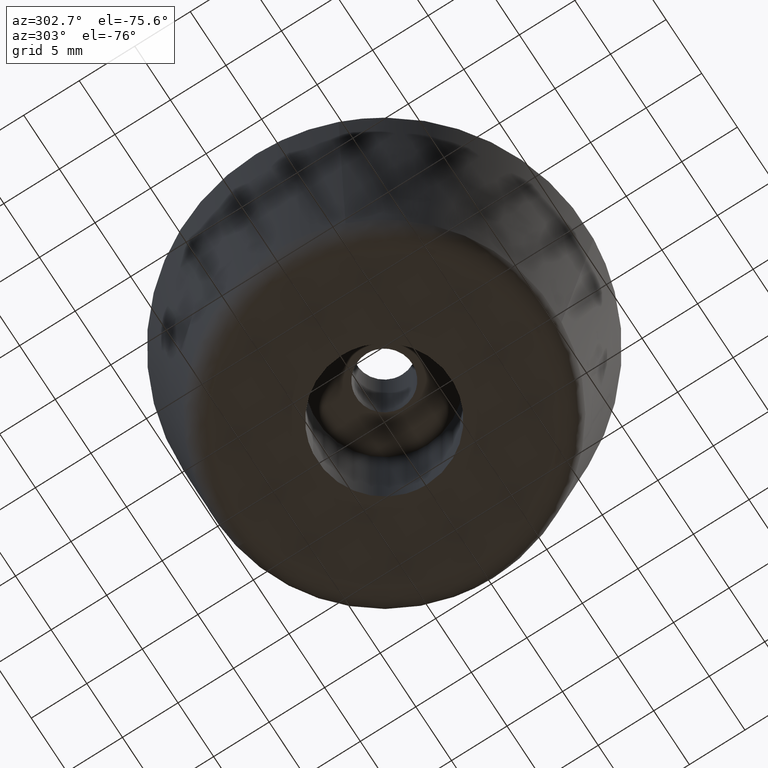
[diagram: clean part render]
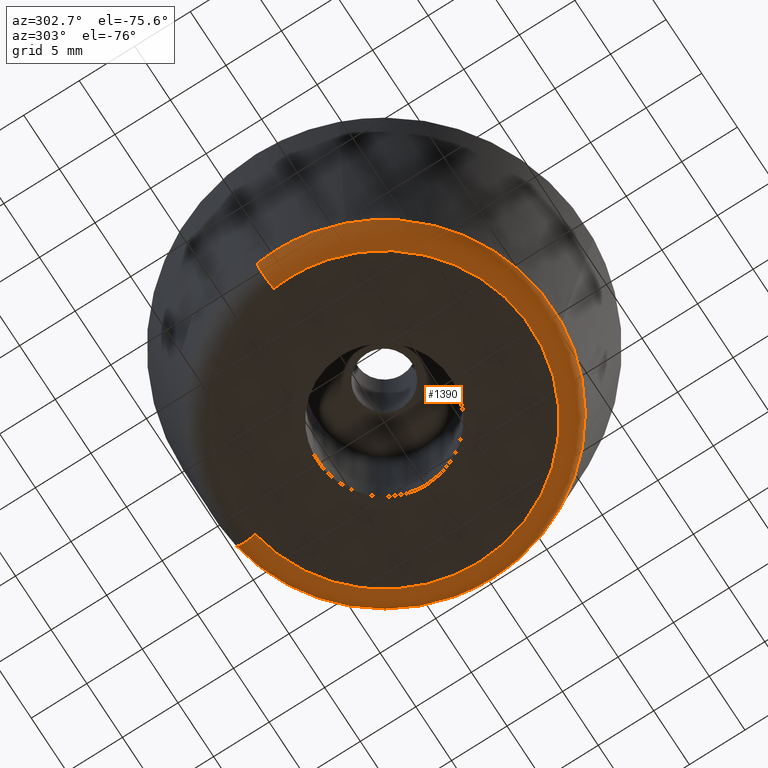
[diagram: same view with one face highlighted and labeled with its STEP entity id]
A machine part, auxiliary view. The second image highlights one B-rep face of the part: STEP entity #1390.
In plain terms, the highlighted face is a freeform B-spline surface patch.
Its self-contained STEP definition (entity closure, byte-faithful):
#511=CARTESIAN_POINT('',(1.195385475668966,-15.188911103896380,1.729770238831320));
#512=VERTEX_POINT('',#511);
#513=CARTESIAN_POINT('',(-14.167302650920259,-5.605309753979007,1.729769007445406));
#514=VERTEX_POINT('',#513);
#515=CARTESIAN_POINT('',(1.195385475668966,-15.188911103896384,1.729770238831321));
#516=CARTESIAN_POINT('',(0.598615391157902,-15.235877629290734,1.729770206088202));
#517=CARTESIAN_POINT('',(-2.654968E-010,-15.235877634201231,1.729770171548069));
#518=CARTESIAN_POINT('',(-10.356957460946093,-15.235877719160307,1.729769573951176));
#519=CARTESIAN_POINT('',(-14.167302650920261,-5.605309753979007,1.729769007445405));
#527=(BOUNDED_CURVE()B_SPLINE_CURVE(2,(#515,#516,#517,#518,#519),.UNSPECIFIED.,.F.,.U.)B_SPLINE_CURVE_WITH_KNOTS((3,2,3),(0.736331387595906,0.750000000000000,0.937532614537402),.UNSPECIFIED.)CURVE()GEOMETRIC_REPRESENTATION_ITEM()RATIONAL_B_SPLINE_CURVE((0.969723537657323,0.983986224465006,1.0,0.780291875582551,0.890203263222006))REPRESENTATION_ITEM(''));
#528=EDGE_CURVE('',#512,#514,#527,.T.);
#588=CARTESIAN_POINT('',(-15.235878000000000,0.0,1.729772999999895));
#589=VERTEX_POINT('',#588);
#590=CARTESIAN_POINT('',(-14.167302650920261,-5.605309753979007,1.729769007445405));
#591=CARTESIAN_POINT('',(-15.235877746872001,-2.904509386733784,1.729771003722650));
#592=CARTESIAN_POINT('',(-15.235878000000000,0.0,1.729772999999895));
#600=(BOUNDED_CURVE()B_SPLINE_CURVE(2,(#590,#591,#592),.UNSPECIFIED.,.F.,.U.)B_SPLINE_CURVE_WITH_KNOTS((3,3),(0.937532614537402,1.0),.UNSPECIFIED.)CURVE()GEOMETRIC_REPRESENTATION_ITEM()RATIONAL_B_SPLINE_CURVE((0.890203263222006,0.926814905603996,1.0))REPRESENTATION_ITEM(''));
#601=EDGE_CURVE('',#514,#589,#600,.T.);
#650=CARTESIAN_POINT('',(15.235878000000000,0.0,1.729772999999895));
#651=VERTEX_POINT('',#650);
#652=CARTESIAN_POINT('',(15.235878000000000,0.0,1.729772999999895));
#653=CARTESIAN_POINT('',(15.235877985229198,-14.083907734397599,1.729771619415607));
#654=CARTESIAN_POINT('',(1.195385475668966,-15.188911103896384,1.729770238831321));
#662=(BOUNDED_CURVE()B_SPLINE_CURVE(2,(#652,#653,#654),.UNSPECIFIED.,.F.,.U.)B_SPLINE_CURVE_WITH_KNOTS((3,3),(0.500000000000000,0.736331387595906),.UNSPECIFIED.)CURVE()GEOMETRIC_REPRESENTATION_ITEM()RATIONAL_B_SPLINE_CURVE((1.0,0.723120556721542,0.969723537657323))REPRESENTATION_ITEM(''));
#663=EDGE_CURVE('',#651,#512,#662,.T.);
#665=CARTESIAN_POINT('',(2.582459574393456,15.015421565838610,1.729772982827424));
#666=VERTEX_POINT('',#665);
#667=CARTESIAN_POINT('',(2.582459574393456,15.015421565838606,1.729772982827424));
#668=CARTESIAN_POINT('',(15.235877999999996,12.839196054625933,1.729772999999895));
#669=CARTESIAN_POINT('',(15.235878000000000,0.0,1.729772999999895));
#677=(BOUNDED_CURVE()B_SPLINE_CURVE(2,(#667,#668,#669),.UNSPECIFIED.,.F.,.U.)B_SPLINE_CURVE_WITH_KNOTS((3,3),(0.279150973644510,0.500000000000000),.UNSPECIFIED.)CURVE()GEOMETRIC_REPRESENTATION_ITEM()RATIONAL_B_SPLINE_CURVE((0.939659646670916,0.741259271195694,1.0))REPRESENTATION_ITEM(''));
#678=EDGE_CURVE('',#666,#651,#677,.T.);
#680=CARTESIAN_POINT('',(-15.138540831143590,1.719466125618749,1.729772982857377));
#681=VERTEX_POINT('',#680);
#697=CARTESIAN_POINT('',(-15.235878000000000,0.0,1.729772999999895));
#698=CARTESIAN_POINT('',(-15.235877999999996,0.862488140188975,1.729772999999896));
#699=CARTESIAN_POINT('',(-15.138540831143589,1.719466125618749,1.729772982857376));
#707=(BOUNDED_CURVE()B_SPLINE_CURVE(2,(#697,#698,#699),.UNSPECIFIED.,.F.,.U.)B_SPLINE_CURVE_WITH_KNOTS((3,3),(0.0,0.019555763443539),.UNSPECIFIED.)CURVE()GEOMETRIC_REPRESENTATION_ITEM()RATIONAL_B_SPLINE_CURVE((1.0,0.977088997994669,0.957762333073104))REPRESENTATION_ITEM(''));
#708=EDGE_CURVE('',#589,#681,#707,.T.);
#1279=CARTESIAN_POINT('',(2.584725313016114,15.028595448953908,1.859054751736892));
#1280=CARTESIAN_POINT('',(16.777031122112881,12.587701208408525,1.859054751736891));
#1281=CARTESIAN_POINT('',(15.151822733787711,-1.720974711010681,1.859054751736891));
#1282=CARTESIAN_POINT('',(13.430848022777029,-16.872797444798401,1.859054751736892));
#1283=CARTESIAN_POINT('',(-1.720974711010680,-15.151822733787711,1.859054751736891));
#1284=CARTESIAN_POINT('',(-16.872797444798401,-13.430848022777029,1.859054751736892));
#1285=CARTESIAN_POINT('',(-15.151822733787711,1.720974711010679,1.859054751736891));
#1286=CARTESIAN_POINT('',(2.560973045627361,14.890490554099749,-0.124469266327122));
#1287=CARTESIAN_POINT('',(16.622859022201471,12.472026848968380,-0.124469266327122));
#1288=CARTESIAN_POINT('',(15.012585444940177,-1.705159857765207,-0.124469266327122));
#1289=CARTESIAN_POINT('',(13.307425587174974,-16.717745302705389,-0.124469266327122));
#1290=CARTESIAN_POINT('',(-1.705159857765205,-15.012585444940177,-0.124469266327122));
#1291=CARTESIAN_POINT('',(-16.717745302705389,-13.307425587174974,-0.124469266327122));
#1292=CARTESIAN_POINT('',(-15.012585444940177,1.705159857765205,-0.124469266327122));
#1293=CARTESIAN_POINT('',(2.224636828341720,12.934901339662465,0.004190889681419));
#1294=CARTESIAN_POINT('',(14.439755403229125,10.834057898288004,0.004190889681419));
#1295=CARTESIAN_POINT('',(13.040961335561187,-1.481218798562228,0.004190889681419));
#1296=CARTESIAN_POINT('',(11.559742536998963,-14.522180134123419,0.004190889681419));
#1297=CARTESIAN_POINT('',(-1.481218798562227,-13.040961335561187,0.004190889681419));
#1298=CARTESIAN_POINT('',(-14.522180134123419,-11.559742536998964,0.004190889681419));
#1299=CARTESIAN_POINT('',(-13.040961335561187,1.481218798562226,0.004190889681419));
#1307=(BOUNDED_SURFACE()B_SPLINE_SURFACE(2,2,((#1279,#1286,#1293),(#1280,#1287,#1294),(#1281,#1288,#1295),(#1282,#1289,#1296),(#1283,#1290,#1297),(#1284,#1291,#1298),(#1285,#1292,#1299)),.UNSPECIFIED.,.F.,.F.,.U.)B_SPLINE_SURFACE_WITH_KNOTS((3,2,2,3),(3,3),(0.0,24.255146004786599,49.520923093105971,74.786700181425346),(0.0,3.300163100304199),.UNSPECIFIED.)GEOMETRIC_REPRESENTATION_ITEM()RATIONAL_B_SPLINE_SURFACE(((0.893408920705802,0.634817252313612,0.896959857882306),(0.656980697466277,0.466821711226186,0.659591928593268),(0.913967896639674,0.649425560234258,0.917600547385701),(0.646272897500719,0.459213217517516,0.648841569476917),(0.913967896639674,0.649425560234258,0.917600547385701),(0.646272897500719,0.459213217517516,0.648841569476917),(0.913967896639674,0.649425560234258,0.917600547385701)))REPRESENTATION_ITEM('')SURFACE());
#1308=CARTESIAN_POINT('',(2.246571014500503,13.062435204911949,3.809857E-016));
#1309=VERTEX_POINT('',#1308);
#1310=CARTESIAN_POINT('',(13.254218000000000,0.0,0.0));
#1311=VERTEX_POINT('',#1310);
#1312=CARTESIAN_POINT('',(2.246571014500503,13.062435204911942,3.809857E-016));
#1313=CARTESIAN_POINT('',(13.254218000000002,11.169261361366729,0.0));
#1314=CARTESIAN_POINT('',(13.254218000000000,0.0,0.0));
#1322=(BOUNDED_CURVE()B_SPLINE_CURVE(2,(#1312,#1313,#1314),.UNSPECIFIED.,.F.,.U.)B_SPLINE_CURVE_WITH_KNOTS((3,3),(0.279150973645332,0.500000000000000),.UNSPECIFIED.)CURVE()GEOMETRIC_REPRESENTATION_ITEM()RATIONAL_B_SPLINE_CURVE((0.939659646669438,0.741259271196657,1.0))REPRESENTATION_ITEM(''));
#1323=EDGE_CURVE('',#1309,#1311,#1322,.T.);
#1324=ORIENTED_EDGE('',*,*,#1323,.F.);
#1325=CARTESIAN_POINT('',(2.582459574393456,15.015421565838610,1.729772982827424));
#1326=CARTESIAN_POINT('',(2.542478495189140,14.782956064788024,9.347097E-010));
#1327=CARTESIAN_POINT('',(2.246571014500503,13.062435204911942,3.809857E-016));
#1335=(BOUNDED_CURVE()B_SPLINE_CURVE(2,(#1325,#1326,#1327),.UNSPECIFIED.,.F.,.U.)B_SPLINE_CURVE_WITH_KNOTS((3,3),(-1.706259834883567,-0.283065972947226),.UNSPECIFIED.)CURVE()GEOMETRIC_REPRESENTATION_ITEM()RATIONAL_B_SPLINE_CURVE((0.870995898622574,0.657391567659871,0.874224248252915))REPRESENTATION_ITEM(''));
#1336=EDGE_CURVE('',#666,#1309,#1335,.T.);
#1337=ORIENTED_EDGE('',*,*,#1336,.F.);
#1338=ORIENTED_EDGE('',*,*,#678,.T.);
#1339=ORIENTED_EDGE('',*,*,#663,.T.);
#1340=ORIENTED_EDGE('',*,*,#528,.T.);
#1341=ORIENTED_EDGE('',*,*,#601,.T.);
#1342=ORIENTED_EDGE('',*,*,#708,.T.);
#1343=CARTESIAN_POINT('',(-13.169540917878781,1.495823127996194,3.724157E-016));
#1344=VERTEX_POINT('',#1343);
#1345=CARTESIAN_POINT('',(-15.138540831143596,1.719466125618748,1.729772982857376));
#1346=CARTESIAN_POINT('',(-14.904169224480970,1.692845723884960,1.739169E-009));
#1347=CARTESIAN_POINT('',(-13.169540917878782,1.495823127996194,3.724157E-016));
#1355=(BOUNDED_CURVE()B_SPLINE_CURVE(2,(#1345,#1346,#1347),.UNSPECIFIED.,.F.,.U.)B_SPLINE_CURVE_WITH_KNOTS((3,3),(-1.706259834916219,-0.283065973446785),.UNSPECIFIED.)CURVE()GEOMETRIC_REPRESENTATION_ITEM()RATIONAL_B_SPLINE_CURVE((0.891039109869104,0.672519352002961,0.894341749572818))REPRESENTATION_ITEM(''));
#1356=EDGE_CURVE('',#681,#1344,#1355,.T.);
#1357=ORIENTED_EDGE('',*,*,#1356,.T.);
#1358=CARTESIAN_POINT('',(-13.254218000000000,0.0,0.0));
#1359=VERTEX_POINT('',#1358);
#1360=CARTESIAN_POINT('',(-13.254218000000000,0.0,0.0));
#1361=CARTESIAN_POINT('',(-13.254217999999998,0.750308307376802,0.0));
#1362=CARTESIAN_POINT('',(-13.169540917878784,1.495823127996194,3.724157E-016));
#1370=(BOUNDED_CURVE()B_SPLINE_CURVE(2,(#1360,#1361,#1362),.UNSPECIFIED.,.F.,.U.)B_SPLINE_CURVE_WITH_KNOTS((3,3),(0.0,0.019555763445378),.UNSPECIFIED.)CURVE()GEOMETRIC_REPRESENTATION_ITEM()RATIONAL_B_SPLINE_CURVE((1.0,0.977088997992515,0.957762333069469))REPRESENTATION_ITEM(''));
#1371=EDGE_CURVE('',#1359,#1344,#1370,.T.);
#1372=ORIENTED_EDGE('',*,*,#1371,.F.);
#1373=CARTESIAN_POINT('',(13.254218000000000,0.0,0.0));
#1374=CARTESIAN_POINT('',(13.254217999999998,-13.254217999999998,0.0));
#1375=CARTESIAN_POINT('',(0.0,-13.254218000000000,0.0));
#1376=CARTESIAN_POINT('',(-13.254217999999998,-13.254217999999998,0.0));
#1377=CARTESIAN_POINT('',(-13.254218000000000,0.0,0.0));
#1385=(BOUNDED_CURVE()B_SPLINE_CURVE(2,(#1373,#1374,#1375,#1376,#1377),.UNSPECIFIED.,.F.,.U.)B_SPLINE_CURVE_WITH_KNOTS((3,2,3),(0.500000000000000,0.750000000000000,1.0),.UNSPECIFIED.)CURVE()GEOMETRIC_REPRESENTATION_ITEM()RATIONAL_B_SPLINE_CURVE((1.0,0.707106781186547,1.0,0.707106781186547,1.0))REPRESENTATION_ITEM(''));
#1386=EDGE_CURVE('',#1311,#1359,#1385,.T.);
#1387=ORIENTED_EDGE('',*,*,#1386,.F.);
#1388=EDGE_LOOP('',(#1324,#1337,#1338,#1339,#1340,#1341,#1342,#1357,#1372,#1387));
#1389=FACE_OUTER_BOUND('',#1388,.T.);
#1390=ADVANCED_FACE('',(#1389),#1307,.T.);